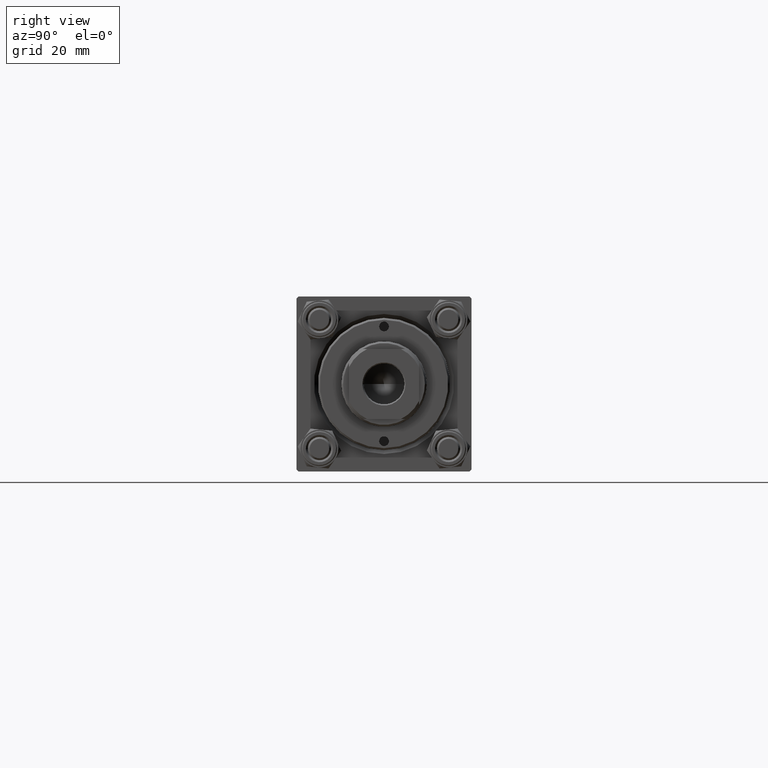
[diagram: clean part render]
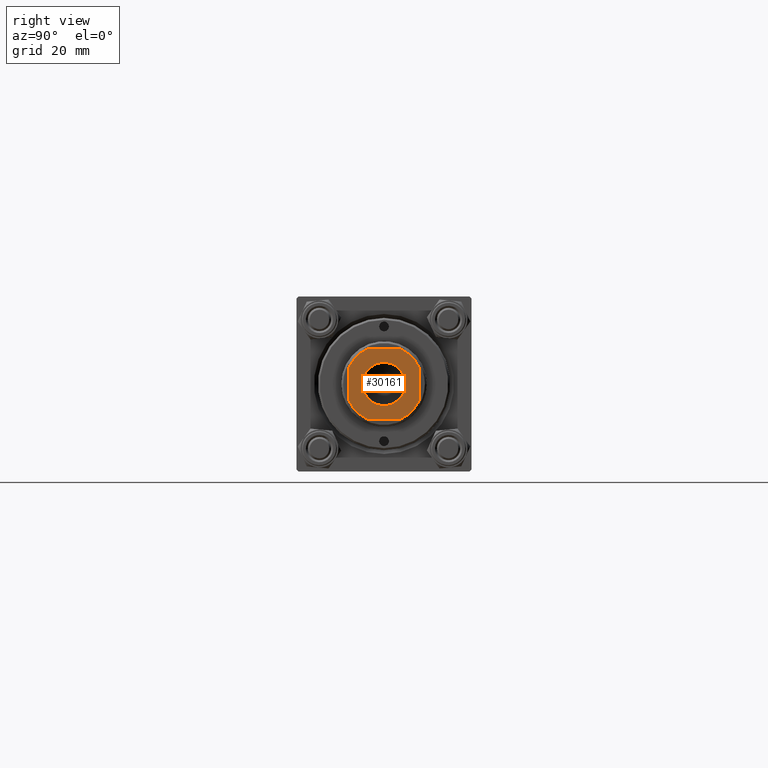
[diagram: same view with one face highlighted and labeled with its STEP entity id]
A machine part, right view. The second image highlights one B-rep face of the part: STEP entity #30161.
In plain terms, the highlighted planar face has unit normal (1, 0, -0).
Its self-contained STEP definition (entity closure, byte-faithful):
#522 = DIRECTION ( 'NONE',  ( 9.637352644315595243E-17, -1.000000000000000000, 0.000000000000000000 ) ) ;
#990 = CARTESIAN_POINT ( 'NONE',  ( 8.999999999999998224, 4.358898943540672200, 128.0000000000000000 ) ) ;
#1213 = ORIENTED_EDGE ( 'NONE', *, *, #33882, .T. ) ;
#1858 = LINE ( 'NONE', #25125, #39634 ) ;
#2971 = EDGE_LOOP ( 'NONE', ( #19199, #3413, #17065, #16459, #37840, #20168, #1213, #47825 ) ) ;
#3006 = VERTEX_POINT ( 'NONE', #4675 ) ;
#3294 = DIRECTION ( 'NONE',  ( -0.000000000000000000, 0.000000000000000000, 1.000000000000000000 ) ) ;
#3413 = ORIENTED_EDGE ( 'NONE', *, *, #31681, .T. ) ;
#3464 = VERTEX_POINT ( 'NONE', #12078 ) ;
#4440 = EDGE_CURVE ( 'NONE', #17375, #3006, #31221, .T. ) ;
#4675 = CARTESIAN_POINT ( 'NONE',  ( -9.000000000000003553, 4.358898943540721937, 128.0000000000000000 ) ) ;
#4754 = VERTEX_POINT ( 'NONE', #18568 ) ;
#4837 = VECTOR ( 'NONE', #20217, 1000.000000000000000 ) ;
#5541 = CIRCLE ( 'NONE', #12794, 10.00000000000002309 ) ;
#6010 = CARTESIAN_POINT ( 'NONE',  ( 0.000000000000000000, 0.000000000000000000, 128.0000000000000000 ) ) ;
#6423 = AXIS2_PLACEMENT_3D ( 'NONE', #37676, #3294, #10378 ) ;
#7255 = VECTOR ( 'NONE', #9569, 1000.000000000000000 ) ;
#7706 = DIRECTION ( 'NONE',  ( 1.000000000000000000, 0.000000000000000000, 0.000000000000000000 ) ) ;
#9321 = CARTESIAN_POINT ( 'NONE',  ( 0.000000000000000000, 0.000000000000000000, 128.0000000000000000 ) ) ;
#9569 = DIRECTION ( 'NONE',  ( -1.000000000000000000, -0.000000000000000000, -0.000000000000000000 ) ) ;
#10378 = DIRECTION ( 'NONE',  ( 1.000000000000000000, 0.000000000000000000, 0.000000000000000000 ) ) ;
#10502 = CIRCLE ( 'NONE', #38768, 9.999999999999996447 ) ;
#10917 = DIRECTION ( 'NONE',  ( 1.000000000000000000, 0.000000000000000000, 0.000000000000000000 ) ) ;
#12078 = CARTESIAN_POINT ( 'NONE',  ( 8.999999999999998224, -4.358898943540728155, 128.0000000000000000 ) ) ;
#12794 = AXIS2_PLACEMENT_3D ( 'NONE', #9321, #21469, #20959 ) ;
#13050 = EDGE_CURVE ( 'NONE', #44463, #19189, #24890, .T. ) ;
#13852 = EDGE_CURVE ( 'NONE', #31583, #3464, #5541, .T. ) ;
#13896 = DIRECTION ( 'NONE',  ( -0.000000000000000000, 0.000000000000000000, 1.000000000000000000 ) ) ;
#14572 = ORIENTED_EDGE ( 'NONE', *, *, #44663, .T. ) ;
#16181 = LINE ( 'NONE', #27065, #4837 ) ;
#16201 = CARTESIAN_POINT ( 'NONE',  ( -9.000000000000003553, 8.999999999999998224, 128.0000000000000000 ) ) ;
#16359 = DIRECTION ( 'NONE',  ( 1.000000000000000000, 0.000000000000000000, 0.000000000000000000 ) ) ;
#16459 = ORIENTED_EDGE ( 'NONE', *, *, #4440, .T. ) ;
#17065 = ORIENTED_EDGE ( 'NONE', *, *, #31315, .T. ) ;
#17375 = VERTEX_POINT ( 'NONE', #30415 ) ;
#17646 = DIRECTION ( 'NONE',  ( 1.000000000000000000, 0.000000000000000000, 0.000000000000000000 ) ) ;
#18223 = PLANE ( 'NONE',  #6423 ) ;
#18568 = CARTESIAN_POINT ( 'NONE',  ( -4.358898943540635784, -9.000000000000001776, 128.0000000000000000 ) ) ;
#19189 = VERTEX_POINT ( 'NONE', #45526 ) ;
#19199 = ORIENTED_EDGE ( 'NONE', *, *, #32098, .T. ) ;
#20168 = ORIENTED_EDGE ( 'NONE', *, *, #29276, .T. ) ;
#20217 = DIRECTION ( 'NONE',  ( -1.927470528863119049E-16, 1.000000000000000000, -0.000000000000000000 ) ) ;
#20356 = VERTEX_POINT ( 'NONE', #38617 ) ;
#20445 = CIRCLE ( 'NONE', #43104, 5.549999999999998934 ) ;
#20923 = AXIS2_PLACEMENT_3D ( 'NONE', #40774, #45577, #10917 ) ;
#20959 = DIRECTION ( 'NONE',  ( 1.000000000000000000, 0.000000000000000000, 0.000000000000000000 ) ) ;
#21204 = LINE ( 'NONE', #44501, #7255 ) ;
#21469 = DIRECTION ( 'NONE',  ( -0.000000000000000000, 0.000000000000000000, 1.000000000000000000 ) ) ;
#24145 = CIRCLE ( 'NONE', #20923, 9.999999999999984013 ) ;
#24890 = CIRCLE ( 'NONE', #39445, 5.549999999999998934 ) ;
#25125 = CARTESIAN_POINT ( 'NONE',  ( -9.000000000000001776, -9.000000000000001776, 128.0000000000000000 ) ) ;
#26463 = VECTOR ( 'NONE', #522, 1000.000000000000000 ) ;
#26488 = EDGE_CURVE ( 'NONE', #3006, #20356, #42779, .T. ) ;
#27065 = CARTESIAN_POINT ( 'NONE',  ( 8.999999999999996447, 8.999999999999998224, 128.0000000000000000 ) ) ;
#29276 = EDGE_CURVE ( 'NONE', #20356, #4754, #24145, .T. ) ;
#30161 = ADVANCED_FACE ( 'NONE', ( #41485, #49341 ), #18223, .T. ) ;
#30415 = CARTESIAN_POINT ( 'NONE',  ( -4.358898943540729931, 8.999999999999998224, 128.0000000000000000 ) ) ;
#30786 = DIRECTION ( 'NONE',  ( -0.000000000000000000, 0.000000000000000000, 1.000000000000000000 ) ) ;
#30972 = DIRECTION ( 'NONE',  ( 0.000000000000000000, -0.000000000000000000, -1.000000000000000000 ) ) ;
#31221 = CIRCLE ( 'NONE', #38473, 10.00000000000002309 ) ;
#31315 = EDGE_CURVE ( 'NONE', #43213, #17375, #21204, .T. ) ;
#31583 = VERTEX_POINT ( 'NONE', #39120 ) ;
#31681 = EDGE_CURVE ( 'NONE', #47981, #43213, #10502, .T. ) ;
#32098 = EDGE_CURVE ( 'NONE', #3464, #47981, #16181, .T. ) ;
#33882 = EDGE_CURVE ( 'NONE', #4754, #31583, #1858, .T. ) ;
#35315 = CARTESIAN_POINT ( 'NONE',  ( 0.000000000000000000, 0.000000000000000000, 128.0000000000000000 ) ) ;
#35339 = ORIENTED_EDGE ( 'NONE', *, *, #13050, .T. ) ;
#37153 = CARTESIAN_POINT ( 'NONE',  ( 0.000000000000000000, 0.000000000000000000, 128.0000000000000000 ) ) ;
#37676 = CARTESIAN_POINT ( 'NONE',  ( 0.000000000000000000, 0.000000000000000000, 128.0000000000000000 ) ) ;
#37840 = ORIENTED_EDGE ( 'NONE', *, *, #26488, .T. ) ;
#38473 = AXIS2_PLACEMENT_3D ( 'NONE', #37153, #13896, #44272 ) ;
#38617 = CARTESIAN_POINT ( 'NONE',  ( -9.000000000000003553, -4.358898943540634008, 128.0000000000000000 ) ) ;
#38768 = AXIS2_PLACEMENT_3D ( 'NONE', #35315, #30786, #16359 ) ;
#39120 = CARTESIAN_POINT ( 'NONE',  ( 4.358898943540723714, -9.000000000000001776, 128.0000000000000000 ) ) ;
#39445 = AXIS2_PLACEMENT_3D ( 'NONE', #42369, #30972, #7706 ) ;
#39634 = VECTOR ( 'NONE', #40545, 1000.000000000000000 ) ;
#39656 = EDGE_LOOP ( 'NONE', ( #35339, #14572 ) ) ;
#40545 = DIRECTION ( 'NONE',  ( 1.000000000000000000, 0.000000000000000000, 0.000000000000000000 ) ) ;
#40774 = CARTESIAN_POINT ( 'NONE',  ( 0.000000000000000000, 0.000000000000000000, 128.0000000000000000 ) ) ;
#41217 = CARTESIAN_POINT ( 'NONE',  ( 5.549999999999998934, 0.000000000000000000, 128.0000000000000000 ) ) ;
#41485 = FACE_BOUND ( 'NONE', #39656, .T. ) ;
#42369 = CARTESIAN_POINT ( 'NONE',  ( 0.000000000000000000, 0.000000000000000000, 128.0000000000000000 ) ) ;
#42779 = LINE ( 'NONE', #16201, #26463 ) ;
#43104 = AXIS2_PLACEMENT_3D ( 'NONE', #6010, #44726, #17646 ) ;
#43213 = VERTEX_POINT ( 'NONE', #49794 ) ;
#44272 = DIRECTION ( 'NONE',  ( 1.000000000000000000, 0.000000000000000000, 0.000000000000000000 ) ) ;
#44463 = VERTEX_POINT ( 'NONE', #41217 ) ;
#44501 = CARTESIAN_POINT ( 'NONE',  ( -9.000000000000003553, 8.999999999999998224, 128.0000000000000000 ) ) ;
#44663 = EDGE_CURVE ( 'NONE', #19189, #44463, #20445, .T. ) ;
#44726 = DIRECTION ( 'NONE',  ( 0.000000000000000000, -0.000000000000000000, -1.000000000000000000 ) ) ;
#45526 = CARTESIAN_POINT ( 'NONE',  ( -5.549999999999998934, 6.796789735267809794E-16, 128.0000000000000000 ) ) ;
#45577 = DIRECTION ( 'NONE',  ( -0.000000000000000000, 0.000000000000000000, 1.000000000000000000 ) ) ;
#47825 = ORIENTED_EDGE ( 'NONE', *, *, #13852, .T. ) ;
#47981 = VERTEX_POINT ( 'NONE', #990 ) ;
#49341 = FACE_OUTER_BOUND ( 'NONE', #2971, .T. ) ;
#49794 = CARTESIAN_POINT ( 'NONE',  ( 4.358898943540671311, 8.999999999999998224, 128.0000000000000000 ) ) ;